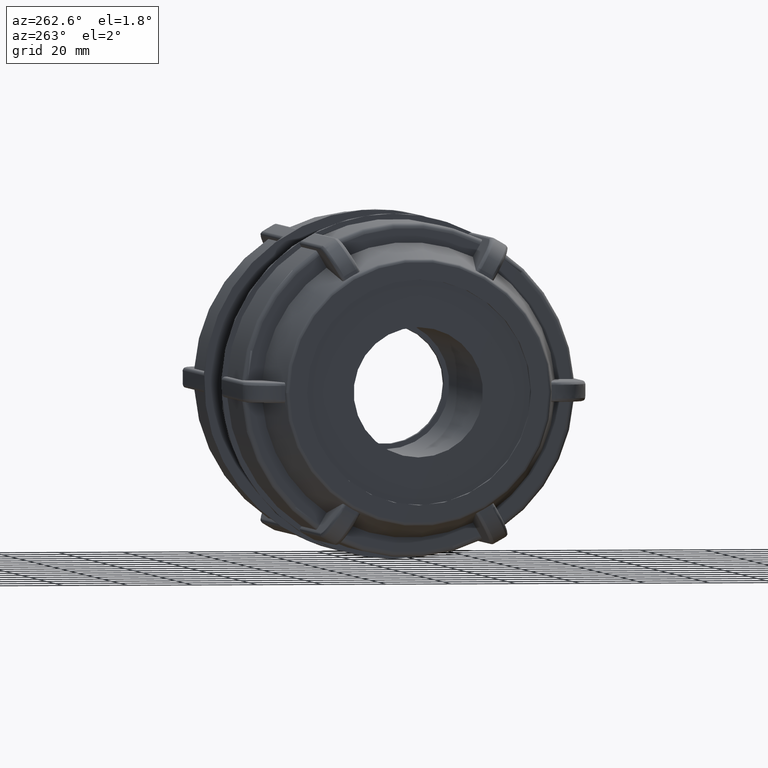
[diagram: clean part render]
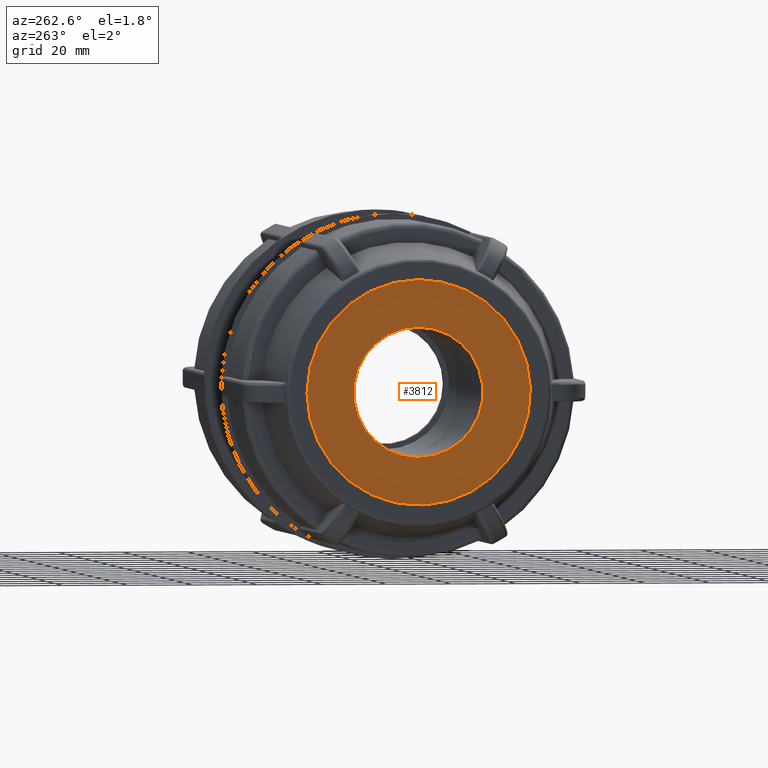
[diagram: same view with one face highlighted and labeled with its STEP entity id]
A machine part, auxiliary view. The second image highlights one B-rep face of the part: STEP entity #3812.
In plain terms, the highlighted planar face has unit normal (1, 0, 0).
Its self-contained STEP definition (entity closure, byte-faithful):
#201=FACE_BOUND('',#671,.T.);
#265=PLANE('',#4168);
#426=FACE_OUTER_BOUND('',#670,.T.);
#670=EDGE_LOOP('',(#3028));
#671=EDGE_LOOP('',(#3029));
#1296=CIRCLE('',#4013,20.);
#1381=CIRCLE('',#4169,34.65);
#1555=VERTEX_POINT('',#5698);
#1696=VERTEX_POINT('',#6763);
#1968=EDGE_CURVE('',#1555,#1555,#1296,.T.);
#2183=EDGE_CURVE('',#1696,#1696,#1381,.T.);
#3028=ORIENTED_EDGE('',*,*,#2183,.F.);
#3029=ORIENTED_EDGE('',*,*,#1968,.T.);
#3812=ADVANCED_FACE('',(#426,#201),#265,.F.);
#4013=AXIS2_PLACEMENT_3D('',#5699,#4605,#4606);
#4168=AXIS2_PLACEMENT_3D('',#6762,#4993,#4994);
#4169=AXIS2_PLACEMENT_3D('',#6764,#4995,#4996);
#4605=DIRECTION('center_axis',(1.,3.06161699786838E-16,0.));
#4606=DIRECTION('ref_axis',(0.,0.,-1.));
#4993=DIRECTION('center_axis',(1.,3.06161699786838E-16,0.));
#4994=DIRECTION('ref_axis',(0.,0.,-1.));
#4995=DIRECTION('center_axis',(1.,3.06161699786838E-16,0.));
#4996=DIRECTION('ref_axis',(0.,0.,-1.));
#5698=CARTESIAN_POINT('',(-81.83,-2.75025054918517E-14,20.));
#5699=CARTESIAN_POINT('Origin',(-81.83,-2.5053211893557E-14,0.));
#6762=CARTESIAN_POINT('Origin',(-81.83,18.4,0.));
#6763=CARTESIAN_POINT('',(-81.83,19.9812405833337,-28.3085238885912));
#6764=CARTESIAN_POINT('Origin',(-81.83,-2.5053211893557E-14,0.));